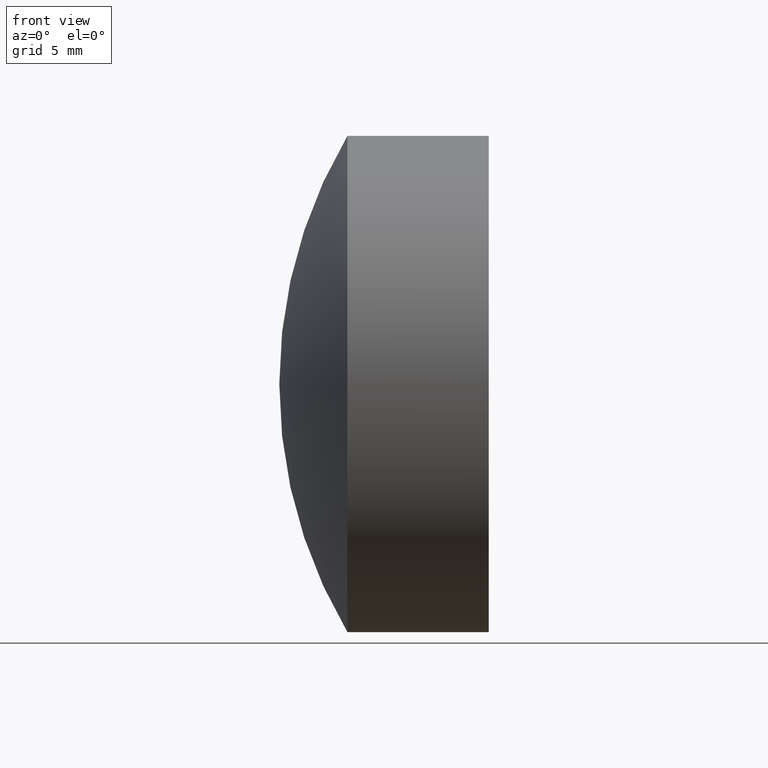
[diagram: clean part render]
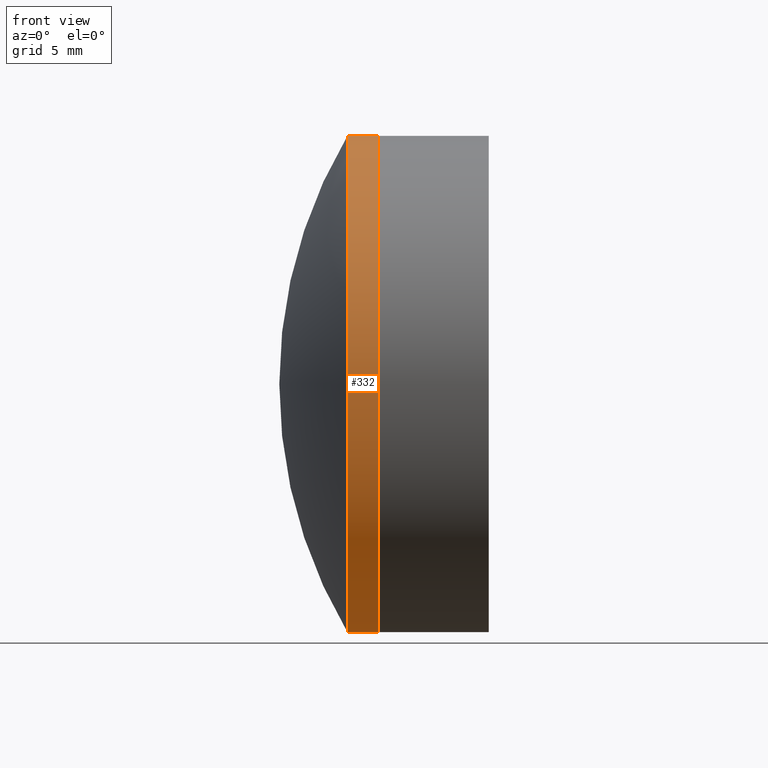
[diagram: same view with one face highlighted and labeled with its STEP entity id]
A machine part, front view. The second image highlights one B-rep face of the part: STEP entity #332.
In plain terms, the highlighted cylindrical surface (partial cylindrical patch) has radius 15 mm, axis along (-1, -0, -0).
Its self-contained STEP definition (entity closure, byte-faithful):
#6 = EDGE_CURVE ( 'NONE', #261, #341, #16, .T. ) ;
#16 = LINE ( 'NONE', #304, #155 ) ;
#44 = DIRECTION ( 'NONE',  ( 0.0000000000000000000, 0.0000000000000000000, 1.000000000000000000 ) ) ;
#50 = DIRECTION ( 'NONE',  ( 0.0000000000000000000, 0.0000000000000000000, 1.000000000000000000 ) ) ;
#51 = AXIS2_PLACEMENT_3D ( 'NONE', #308, #58, #50 ) ;
#58 = DIRECTION ( 'NONE',  ( -1.000000000000000000, -0.0000000000000000000, -0.0000000000000000000 ) ) ;
#59 = CARTESIAN_POINT ( 'NONE',  ( 96.59065489886367600, 0.0000000000000000000, 14.99999999999999300 ) ) ;
#65 = EDGE_CURVE ( 'NONE', #261, #191, #283, .T. ) ;
#88 = EDGE_LOOP ( 'NONE', ( #241, #287, #263, #284 ) ) ;
#102 = EDGE_CURVE ( 'NONE', #341, #179, #326, .T. ) ;
#104 = CYLINDRICAL_SURFACE ( 'NONE', #130, 14.99999999999999800 ) ;
#110 = CARTESIAN_POINT ( 'NONE',  ( 96.59065489886367600, 1.836970198721028800E-015, -14.99999999999999600 ) ) ;
#130 = AXIS2_PLACEMENT_3D ( 'NONE', #193, #162, #44 ) ;
#155 = VECTOR ( 'NONE', #237, 1000.000000000000000 ) ;
#162 = DIRECTION ( 'NONE',  ( -1.000000000000000000, -0.0000000000000000000, -0.0000000000000000000 ) ) ;
#171 = DIRECTION ( 'NONE',  ( -1.000000000000000000, -0.0000000000000000000, -0.0000000000000000000 ) ) ;
#172 = CARTESIAN_POINT ( 'NONE',  ( 96.59065489886367600, 0.0000000000000000000, 0.0000000000000000000 ) ) ;
#173 = CARTESIAN_POINT ( 'NONE',  ( 98.47493971991563900, 1.836970198721030000E-015, -15.00000000000000200 ) ) ;
#177 = FACE_OUTER_BOUND ( 'NONE', #88, .T. ) ;
#179 = VERTEX_POINT ( 'NONE', #59 ) ;
#189 = AXIS2_PLACEMENT_3D ( 'NONE', #172, #171, #251 ) ;
#191 = VERTEX_POINT ( 'NONE', #249 ) ;
#193 = CARTESIAN_POINT ( 'NONE',  ( -0.8160621761658039000, 0.0000000000000000000, 0.0000000000000000000 ) ) ;
#203 = VECTOR ( 'NONE', #282, 1000.000000000000000 ) ;
#211 = LINE ( 'NONE', #347, #203 ) ;
#237 = DIRECTION ( 'NONE',  ( -1.000000000000000000, -0.0000000000000000000, -0.0000000000000000000 ) ) ;
#241 = ORIENTED_EDGE ( 'NONE', *, *, #6, .F. ) ;
#249 = CARTESIAN_POINT ( 'NONE',  ( 98.47493971991563900, 0.0000000000000000000, 15.00000000000000000 ) ) ;
#251 = DIRECTION ( 'NONE',  ( 0.0000000000000000000, 0.0000000000000000000, 1.000000000000000000 ) ) ;
#261 = VERTEX_POINT ( 'NONE', #173 ) ;
#263 = ORIENTED_EDGE ( 'NONE', *, *, #300, .T. ) ;
#282 = DIRECTION ( 'NONE',  ( -1.000000000000000000, -0.0000000000000000000, -0.0000000000000000000 ) ) ;
#283 = CIRCLE ( 'NONE', #51, 15.00000000000000000 ) ;
#284 = ORIENTED_EDGE ( 'NONE', *, *, #102, .F. ) ;
#287 = ORIENTED_EDGE ( 'NONE', *, *, #65, .T. ) ;
#300 = EDGE_CURVE ( 'NONE', #191, #179, #211, .T. ) ;
#304 = CARTESIAN_POINT ( 'NONE',  ( -0.8160621761658039000, 1.836970198721029600E-015, -14.99999999999999800 ) ) ;
#308 = CARTESIAN_POINT ( 'NONE',  ( 98.47493971991563900, 0.0000000000000000000, 0.0000000000000000000 ) ) ;
#326 = CIRCLE ( 'NONE', #189, 14.99999999999999600 ) ;
#332 = ADVANCED_FACE ( 'NONE', ( #177 ), #104, .T. ) ;
#341 = VERTEX_POINT ( 'NONE', #110 ) ;
#347 = CARTESIAN_POINT ( 'NONE',  ( -0.8160621761658039000, 0.0000000000000000000, 14.99999999999999800 ) ) ;